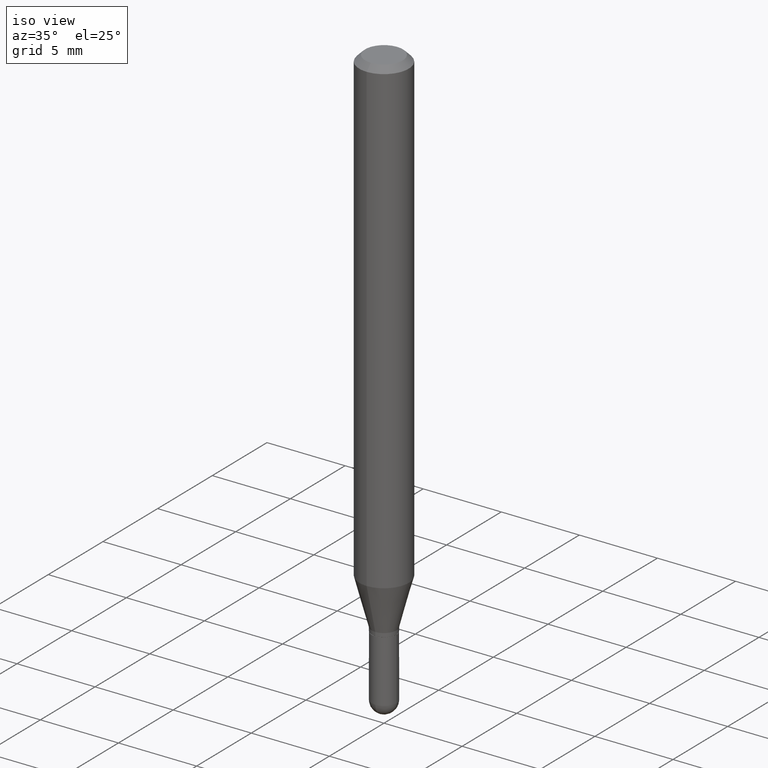
[diagram: clean part render]
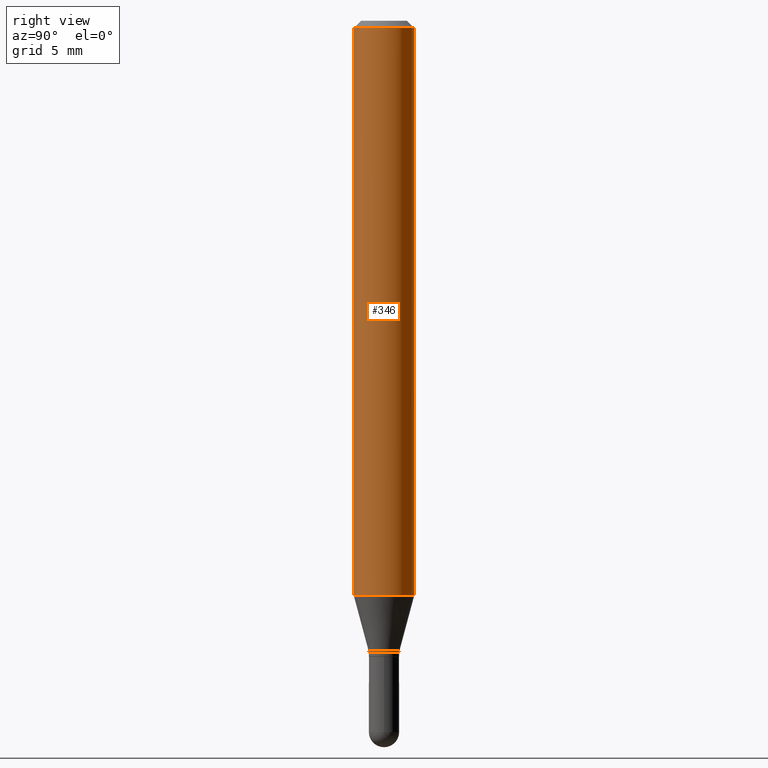
[diagram: tour spotlight — one face highlighted and labeled with its STEP entity id]
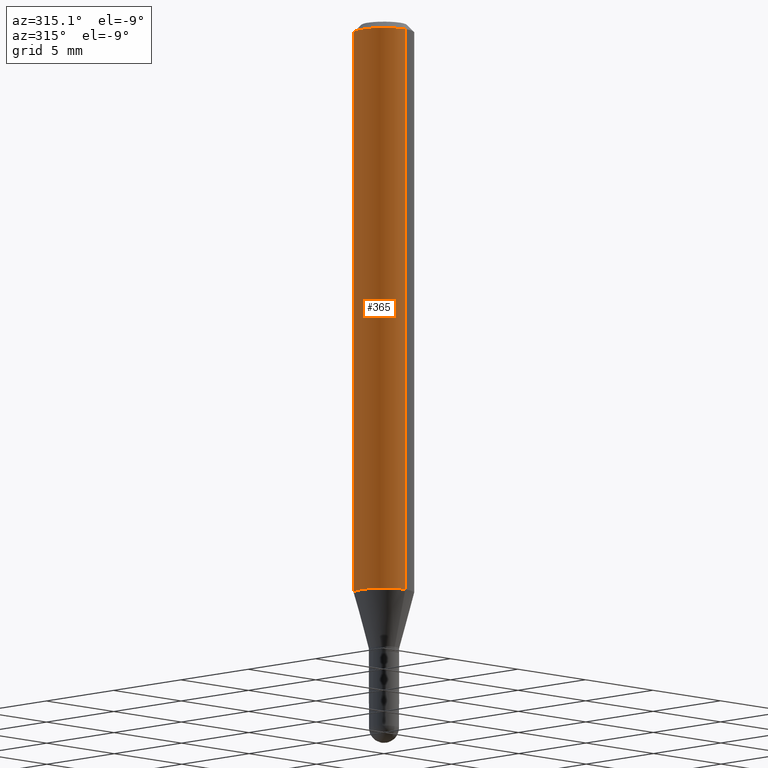
[diagram: tour spotlight — one face highlighted and labeled with its STEP entity id]
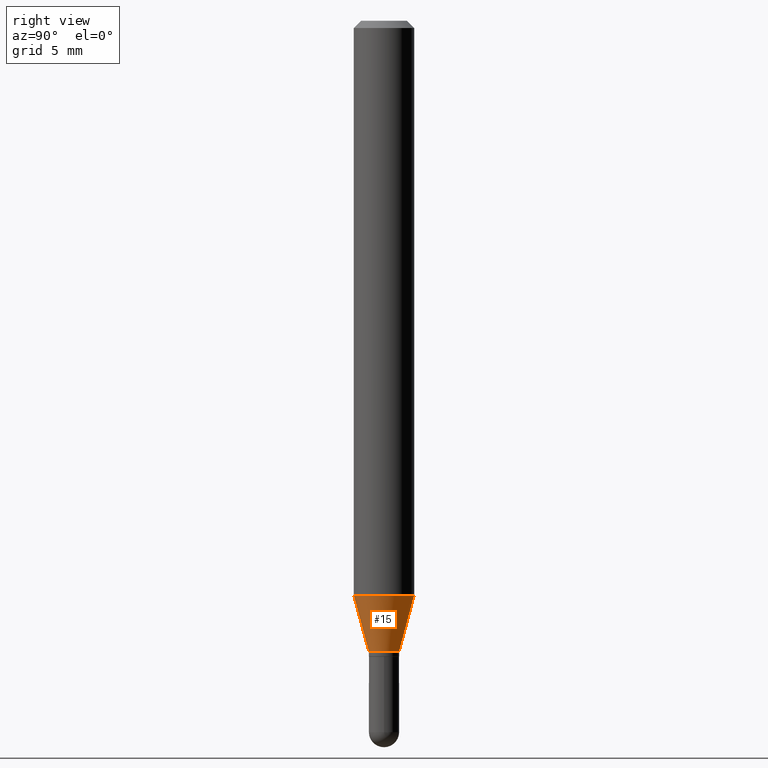
[diagram: tour spotlight — one face highlighted and labeled with its STEP entity id]
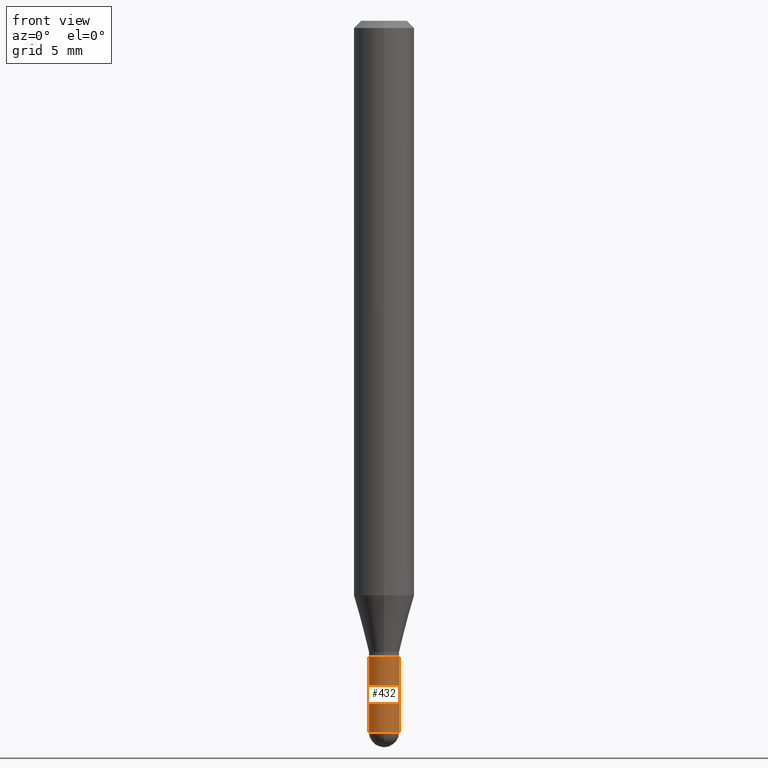
[diagram: tour spotlight — one face highlighted and labeled with its STEP entity id]
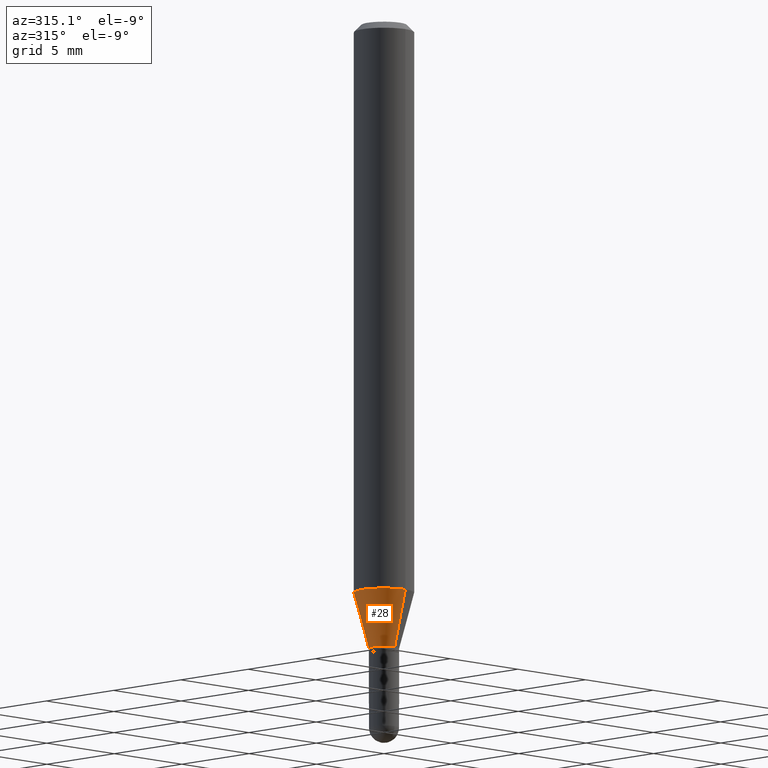
[diagram: tour spotlight — one face highlighted and labeled with its STEP entity id]
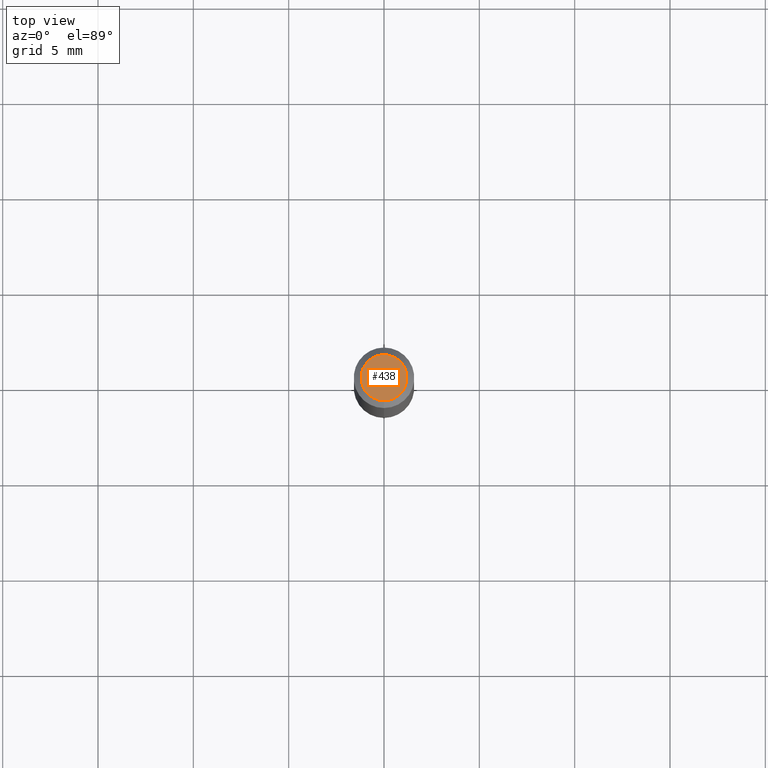
[diagram: tour spotlight — one face highlighted and labeled with its STEP entity id]
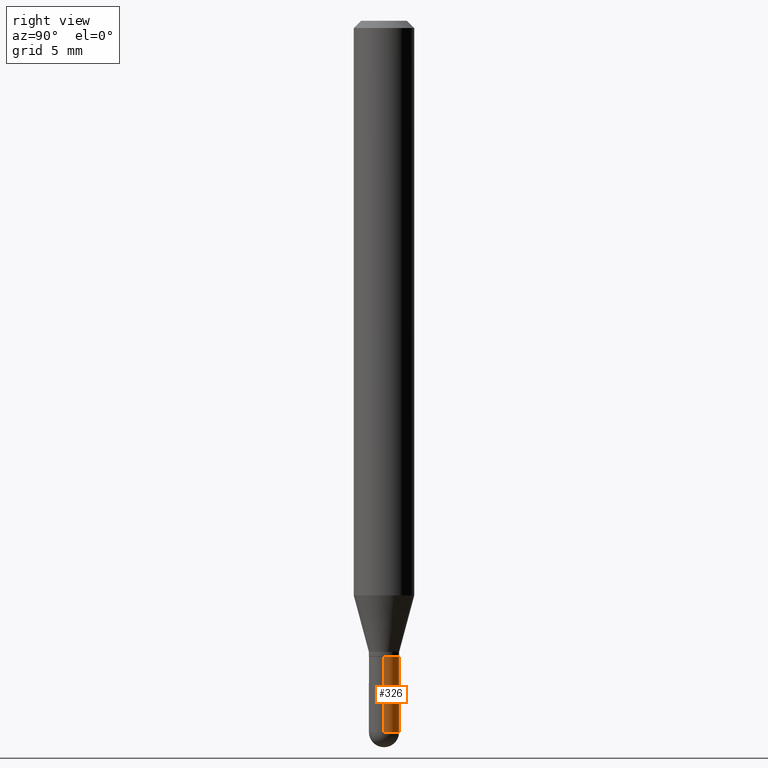
[diagram: tour spotlight — one face highlighted and labeled with its STEP entity id]
A machine part: a face-by-face anatomy tour. The part has 17 B-rep faces; the first image is the clean iso view, then the 7 largest visible faces are spotlighted one at a time (largest first), each with its STEP entity span.

Face 1 — right view, entity #346. In plain terms, the highlighted cylindrical surface (edge-blend (fillet) strip) has radius 1.5875 mm, axis along (-0, 0, 1).
Definition (entity closure, byte-faithful):
#10 = ORIENTED_EDGE ( 'NONE', *, *, #66, .F. ) ;
#13 = DIRECTION ( 'NONE',  ( -2.445707618412851174E-29, 3.491139346140710505E-15, 1.000000000000000000 ) ) ;
#37 = CARTESIAN_POINT ( 'NONE',  ( -4.364351673553913736E-16, -0.06250000000000006939, -0.01500000000000056496 ) ) ;
#54 = ORIENTED_EDGE ( 'NONE', *, *, #314, .T. ) ;
#65 = CARTESIAN_POINT ( 'NONE',  ( 4.440892098500919026E-16, 0.06249999999999997224, -0.01500000000000100038 ) ) ;
#66 = EDGE_CURVE ( 'NONE', #137, #136, #457, .T. ) ;
#75 = VECTOR ( 'NONE', #160, 39.37007874015748143 ) ;
#79 = CARTESIAN_POINT ( 'NONE',  ( 3.668561427619468125E-31, -5.236709019211339271E-17, -0.01500000000000078354 ) ) ;
#83 = CARTESIAN_POINT ( 'NONE',  ( -4.364351673553628267E-16, -0.06250000000000416334, -1.186373412263473703 ) ) ;
#92 = FACE_OUTER_BOUND ( 'NONE', #333, .T. ) ;
#114 = CARTESIAN_POINT ( 'NONE',  ( -4.364351673553916694E-16, -0.06250000000000001388, 2.181962091337944559E-16 ) ) ;
#128 = EDGE_CURVE ( 'NONE', #367, #137, #302, .T. ) ;
#136 = VERTEX_POINT ( 'NONE', #65 ) ;
#137 = VERTEX_POINT ( 'NONE', #37 ) ;
#160 = DIRECTION ( 'NONE',  ( -2.445707618412851454E-29, 3.491139346140710505E-15, 1.000000000000000000 ) ) ;
#167 = CARTESIAN_POINT ( 'NONE',  ( 0.000000000000000000, 0.000000000000000000, 0.000000000000000000 ) ) ;
#175 = VERTEX_POINT ( 'NONE', #193 ) ;
#193 = CARTESIAN_POINT ( 'NONE',  ( 4.440892098500913110E-16, 0.06249999999999582279, -1.186373412263473925 ) ) ;
#209 = CYLINDRICAL_SURFACE ( 'NONE', #309, 0.06250000000000001388 ) ;
#211 = AXIS2_PLACEMENT_3D ( 'NONE', #79, #235, #385 ) ;
#234 = DIRECTION ( 'NONE',  ( -2.445707618412851174E-29, 3.491139346140710505E-15, 1.000000000000000000 ) ) ;
#235 = DIRECTION ( 'NONE',  ( -2.445707618412851174E-29, 3.491139346140710505E-15, 1.000000000000000000 ) ) ;
#242 = EDGE_CURVE ( 'NONE', #367, #175, #402, .T. ) ;
#279 = ORIENTED_EDGE ( 'NONE', *, *, #128, .F. ) ;
#280 = LINE ( 'NONE', #396, #75 ) ;
#289 = ORIENTED_EDGE ( 'NONE', *, *, #242, .T. ) ;
#300 = VECTOR ( 'NONE', #510, 39.37007874015748143 ) ;
#302 = LINE ( 'NONE', #114, #300 ) ;
#309 = AXIS2_PLACEMENT_3D ( 'NONE', #167, #13, #394 ) ;
#314 = EDGE_CURVE ( 'NONE', #175, #136, #280, .T. ) ;
#333 = EDGE_LOOP ( 'NONE', ( #289, #54, #10, #279 ) ) ;
#346 = ADVANCED_FACE ( 'NONE', ( #92 ), #209, .T. ) ;
#367 = VERTEX_POINT ( 'NONE', #83 ) ;
#385 = DIRECTION ( 'NONE',  ( -6.982962677686265922E-15, -1.000000000000000000, 3.483106191921934765E-15 ) ) ;
#394 = DIRECTION ( 'NONE',  ( -6.982962677686265133E-15, -1.000000000000000000, 3.491139346140710505E-15 ) ) ;
#396 = CARTESIAN_POINT ( 'NONE',  ( 4.440892098500626162E-16, 0.06250000000000001388, -2.181962091337944559E-16 ) ) ;
#402 = CIRCLE ( 'NONE', #488, 0.06250000000000000000 ) ;
#457 = CIRCLE ( 'NONE', #211, 0.06250000000000001388 ) ;
#472 = DIRECTION ( 'NONE',  ( -6.982962677686265922E-15, -1.000000000000000000, 4.370956789862821150E-15 ) ) ;
#488 = AXIS2_PLACEMENT_3D ( 'NONE', #497, #234, #472 ) ;
#497 = CARTESIAN_POINT ( 'NONE',  ( 2.901522492655228288E-29, -4.141794898768227325E-15, -1.186373412263473703 ) ) ;
#510 = DIRECTION ( 'NONE',  ( -2.445707618412851454E-29, 3.491139346140710505E-15, 1.000000000000000000 ) ) ;

Face 2 — auxiliary view, entity #365. In plain terms, the highlighted cylindrical surface (edge-blend (fillet) strip) has radius 1.5875 mm, axis along (-0, 0, 1).
Definition (entity closure, byte-faithful):
#1 = EDGE_CURVE ( 'NONE', #136, #137, #388, .T. ) ;
#3 = CYLINDRICAL_SURFACE ( 'NONE', #153, 0.06250000000000001388 ) ;
#12 = CIRCLE ( 'NONE', #86, 0.06250000000000000000 ) ;
#37 = CARTESIAN_POINT ( 'NONE',  ( -4.364351673553913736E-16, -0.06250000000000006939, -0.01500000000000056496 ) ) ;
#49 = CARTESIAN_POINT ( 'NONE',  ( 0.000000000000000000, 0.000000000000000000, 0.000000000000000000 ) ) ;
#65 = CARTESIAN_POINT ( 'NONE',  ( 4.440892098500919026E-16, 0.06249999999999997224, -0.01500000000000100038 ) ) ;
#75 = VECTOR ( 'NONE', #160, 39.37007874015748143 ) ;
#83 = CARTESIAN_POINT ( 'NONE',  ( -4.364351673553628267E-16, -0.06250000000000416334, -1.186373412263473703 ) ) ;
#86 = AXIS2_PLACEMENT_3D ( 'NONE', #268, #386, #501 ) ;
#104 = CARTESIAN_POINT ( 'NONE',  ( 3.668561427619468125E-31, -5.236709019211339271E-17, -0.01500000000000078354 ) ) ;
#114 = CARTESIAN_POINT ( 'NONE',  ( -4.364351673553916694E-16, -0.06250000000000001388, 2.181962091337944559E-16 ) ) ;
#128 = EDGE_CURVE ( 'NONE', #367, #137, #302, .T. ) ;
#136 = VERTEX_POINT ( 'NONE', #65 ) ;
#137 = VERTEX_POINT ( 'NONE', #37 ) ;
#148 = EDGE_CURVE ( 'NONE', #175, #367, #12, .T. ) ;
#153 = AXIS2_PLACEMENT_3D ( 'NONE', #49, #213, #317 ) ;
#160 = DIRECTION ( 'NONE',  ( -2.445707618412851454E-29, 3.491139346140710505E-15, 1.000000000000000000 ) ) ;
#175 = VERTEX_POINT ( 'NONE', #193 ) ;
#180 = DIRECTION ( 'NONE',  ( -6.982962677686265922E-15, -1.000000000000000000, 3.483106191921934765E-15 ) ) ;
#193 = CARTESIAN_POINT ( 'NONE',  ( 4.440892098500913110E-16, 0.06249999999999582279, -1.186373412263473925 ) ) ;
#201 = AXIS2_PLACEMENT_3D ( 'NONE', #104, #378, #180 ) ;
#208 = ORIENTED_EDGE ( 'NONE', *, *, #128, .T. ) ;
#213 = DIRECTION ( 'NONE',  ( -2.445707618412851174E-29, 3.491139346140710505E-15, 1.000000000000000000 ) ) ;
#239 = EDGE_LOOP ( 'NONE', ( #284, #248, #208, #250 ) ) ;
#248 = ORIENTED_EDGE ( 'NONE', *, *, #148, .T. ) ;
#250 = ORIENTED_EDGE ( 'NONE', *, *, #1, .F. ) ;
#268 = CARTESIAN_POINT ( 'NONE',  ( 2.901522492655228288E-29, -4.141794898768227325E-15, -1.186373412263473703 ) ) ;
#280 = LINE ( 'NONE', #396, #75 ) ;
#284 = ORIENTED_EDGE ( 'NONE', *, *, #314, .F. ) ;
#300 = VECTOR ( 'NONE', #510, 39.37007874015748143 ) ;
#302 = LINE ( 'NONE', #114, #300 ) ;
#314 = EDGE_CURVE ( 'NONE', #175, #136, #280, .T. ) ;
#316 = FACE_OUTER_BOUND ( 'NONE', #239, .T. ) ;
#317 = DIRECTION ( 'NONE',  ( -6.982962677686265133E-15, -1.000000000000000000, 3.491139346140710505E-15 ) ) ;
#365 = ADVANCED_FACE ( 'NONE', ( #316 ), #3, .T. ) ;
#367 = VERTEX_POINT ( 'NONE', #83 ) ;
#378 = DIRECTION ( 'NONE',  ( -2.445707618412851174E-29, 3.491139346140710505E-15, 1.000000000000000000 ) ) ;
#386 = DIRECTION ( 'NONE',  ( -2.445707618412851174E-29, 3.491139346140710505E-15, 1.000000000000000000 ) ) ;
#388 = CIRCLE ( 'NONE', #201, 0.06250000000000001388 ) ;
#396 = CARTESIAN_POINT ( 'NONE',  ( 4.440892098500626162E-16, 0.06250000000000001388, -2.181962091337944559E-16 ) ) ;
#501 = DIRECTION ( 'NONE',  ( -6.982962677686265922E-15, -1.000000000000000000, 4.370956789862821150E-15 ) ) ;
#510 = DIRECTION ( 'NONE',  ( -2.445707618412851454E-29, 3.491139346140710505E-15, 1.000000000000000000 ) ) ;

Face 3 — right view, entity #15. In plain terms, the highlighted conical surface has half-angle 15 deg.
Definition (entity closure, byte-faithful):
#15 = ADVANCED_FACE ( 'NONE', ( #500 ), #433, .T. ) ;
#16 = ORIENTED_EDGE ( 'NONE', *, *, #77, .F. ) ;
#40 = DIRECTION ( 'NONE',  ( 1.839019923739601104E-15, 0.2588190451025250693, 0.9659258262890670910 ) ) ;
#77 = EDGE_CURVE ( 'NONE', #163, #367, #103, .T. ) ;
#82 = DIRECTION ( 'NONE',  ( -2.445707618412851174E-29, 3.491139346140710505E-15, 1.000000000000000000 ) ) ;
#83 = CARTESIAN_POINT ( 'NONE',  ( -4.364351673553628267E-16, -0.06250000000000416334, -1.186373412263473703 ) ) ;
#85 = CARTESIAN_POINT ( 'NONE',  ( 3.330669073875781221E-16, 0.03124999999999564237, -1.302999999999999936 ) ) ;
#89 = EDGE_CURVE ( 'NONE', #163, #372, #425, .T. ) ;
#103 = LINE ( 'NONE', #351, #164 ) ;
#112 = DIRECTION ( 'NONE',  ( -6.982962677686265922E-15, -1.000000000000000000, 0.000000000000000000 ) ) ;
#122 = AXIS2_PLACEMENT_3D ( 'NONE', #146, #82, #112 ) ;
#144 = DIRECTION ( 'NONE',  ( -6.982962677686265922E-15, -1.000000000000000000, 0.000000000000000000 ) ) ;
#146 = CARTESIAN_POINT ( 'NONE',  ( 3.186757026791945366E-29, -4.548954568021345804E-15, -1.302999999999999936 ) ) ;
#149 = CARTESIAN_POINT ( 'NONE',  ( 2.220446049250645389E-16, 0.03124999999999564584, -1.302999999999999936 ) ) ;
#163 = VERTEX_POINT ( 'NONE', #464 ) ;
#164 = VECTOR ( 'NONE', #343, 39.37007874015748143 ) ;
#175 = VERTEX_POINT ( 'NONE', #193 ) ;
#183 = VECTOR ( 'NONE', #40, 39.37007874015748143 ) ;
#193 = CARTESIAN_POINT ( 'NONE',  ( 4.440892098500913110E-16, 0.06249999999999582279, -1.186373412263473925 ) ) ;
#234 = DIRECTION ( 'NONE',  ( -2.445707618412851174E-29, 3.491139346140710505E-15, 1.000000000000000000 ) ) ;
#242 = EDGE_CURVE ( 'NONE', #367, #175, #402, .T. ) ;
#259 = EDGE_CURVE ( 'NONE', #372, #175, #377, .T. ) ;
#276 = AXIS2_PLACEMENT_3D ( 'NONE', #420, #502, #144 ) ;
#323 = ORIENTED_EDGE ( 'NONE', *, *, #89, .T. ) ;
#327 = EDGE_LOOP ( 'NONE', ( #323, #447, #486, #16 ) ) ;
#343 = DIRECTION ( 'NONE',  ( -1.807323732225330928E-15, -0.2588190451025182970, 0.9659258262890689783 ) ) ;
#351 = CARTESIAN_POINT ( 'NONE',  ( -2.182175836776652910E-16, -0.03125000000000474620, -1.302999999999999936 ) ) ;
#367 = VERTEX_POINT ( 'NONE', #83 ) ;
#372 = VERTEX_POINT ( 'NONE', #85 ) ;
#377 = LINE ( 'NONE', #149, #183 ) ;
#402 = CIRCLE ( 'NONE', #488, 0.06250000000000000000 ) ;
#420 = CARTESIAN_POINT ( 'NONE',  ( 3.186757026791945366E-29, -4.548954568021345804E-15, -1.302999999999999936 ) ) ;
#425 = CIRCLE ( 'NONE', #122, 0.03125000000000019429 ) ;
#433 = CONICAL_SURFACE ( 'NONE', #276, 0.03125000000000019429, 0.2617993877991502960 ) ;
#447 = ORIENTED_EDGE ( 'NONE', *, *, #259, .T. ) ;
#464 = CARTESIAN_POINT ( 'NONE',  ( -2.182175836776652910E-16, -0.03125000000000474620, -1.302999999999999936 ) ) ;
#472 = DIRECTION ( 'NONE',  ( -6.982962677686265922E-15, -1.000000000000000000, 4.370956789862821150E-15 ) ) ;
#486 = ORIENTED_EDGE ( 'NONE', *, *, #242, .F. ) ;
#488 = AXIS2_PLACEMENT_3D ( 'NONE', #497, #234, #472 ) ;
#497 = CARTESIAN_POINT ( 'NONE',  ( 2.901522492655228288E-29, -4.141794898768227325E-15, -1.186373412263473703 ) ) ;
#500 = FACE_OUTER_BOUND ( 'NONE', #327, .T. ) ;
#502 = DIRECTION ( 'NONE',  ( -2.445707618412851174E-29, 3.491139346140710505E-15, 1.000000000000000000 ) ) ;

Face 4 — front view, entity #432. In plain terms, the highlighted cylindrical surface (edge-blend (fillet) strip) has radius 0.7937 mm, axis along (-0, 0, 1).
Definition (entity closure, byte-faithful):
#9 = CARTESIAN_POINT ( 'NONE',  ( 3.591782309084418816E-29, -5.128113216425869865E-15, -1.468750000000000000 ) ) ;
#11 = EDGE_CURVE ( 'NONE', #165, #383, #328, .T. ) ;
#23 = AXIS2_PLACEMENT_3D ( 'NONE', #9, #481, #478 ) ;
#29 = CARTESIAN_POINT ( 'NONE',  ( 0.03125000000000000000, -4.802532581578746433E-15, -1.313000000000000167 ) ) ;
#32 = LINE ( 'NONE', #184, #329 ) ;
#52 = VERTEX_POINT ( 'NONE', #493 ) ;
#69 = CARTESIAN_POINT ( 'NONE',  ( -2.182175836776606071E-16, -0.03125000000000523193, -1.468750000000000000 ) ) ;
#78 = DIRECTION ( 'NONE',  ( -2.445468806185136877E-29, 3.491481338843145188E-15, 1.000000000000000000 ) ) ;
#109 = AXIS2_PLACEMENT_3D ( 'NONE', #173, #331, #491 ) ;
#140 = AXIS2_PLACEMENT_3D ( 'NONE', #262, #340, #299 ) ;
#165 = VERTEX_POINT ( 'NONE', #69 ) ;
#172 = VERTEX_POINT ( 'NONE', #470 ) ;
#173 = CARTESIAN_POINT ( 'NONE',  ( 3.210900542521084585E-29, -4.584314997901050598E-15, -1.313000000000000167 ) ) ;
#184 = CARTESIAN_POINT ( 'NONE',  ( 0.03125000000000000000, -2.182175836776958347E-16, 1.523805242436229935E-30 ) ) ;
#200 = CARTESIAN_POINT ( 'NONE',  ( 0.000000000000000000, 0.000000000000000000, 0.000000000000000000 ) ) ;
#202 = CIRCLE ( 'NONE', #109, 0.03125000000000000000 ) ;
#214 = ORIENTED_EDGE ( 'NONE', *, *, #441, .F. ) ;
#225 = ORIENTED_EDGE ( 'NONE', *, *, #11, .T. ) ;
#226 = EDGE_CURVE ( 'NONE', #383, #228, #32, .T. ) ;
#228 = VERTEX_POINT ( 'NONE', #29 ) ;
#232 = VECTOR ( 'NONE', #278, 39.37007874015748143 ) ;
#243 = CYLINDRICAL_SURFACE ( 'NONE', #322, 0.03125000000000000000 ) ;
#249 = CARTESIAN_POINT ( 'NONE',  ( -0.03125000000000000000, 2.220446049250313081E-16, -1.537167215704658057E-30 ) ) ;
#262 = CARTESIAN_POINT ( 'NONE',  ( 3.591782309084418816E-29, -5.128113216425869865E-15, -1.468750000000000000 ) ) ;
#278 = DIRECTION ( 'NONE',  ( -2.445468806185136877E-29, 3.491481338843145188E-15, 1.000000000000000000 ) ) ;
#299 = DIRECTION ( 'NONE',  ( 1.000000000000000000, -6.982962677686261189E-15, 0.000000000000000000 ) ) ;
#322 = AXIS2_PLACEMENT_3D ( 'NONE', #200, #401, #366 ) ;
#328 = CIRCLE ( 'NONE', #140, 0.03125000000000000694 ) ;
#329 = VECTOR ( 'NONE', #78, 39.37007874015748143 ) ;
#331 = DIRECTION ( 'NONE',  ( -2.445468806185136597E-29, 3.491481338843145583E-15, 1.000000000000000000 ) ) ;
#336 = EDGE_CURVE ( 'NONE', #172, #228, #202, .T. ) ;
#340 = DIRECTION ( 'NONE',  ( -2.445468806185136597E-29, 3.491481338843145583E-15, 1.000000000000000000 ) ) ;
#364 = ORIENTED_EDGE ( 'NONE', *, *, #336, .F. ) ;
#366 = DIRECTION ( 'NONE',  ( 1.000000000000000000, -6.982962677686266711E-15, 4.876176775795935793E-29 ) ) ;
#381 = EDGE_CURVE ( 'NONE', #52, #165, #507, .T. ) ;
#383 = VERTEX_POINT ( 'NONE', #392 ) ;
#392 = CARTESIAN_POINT ( 'NONE',  ( 0.03125000000000000694, -5.074431690841155672E-15, -1.468750000000000000 ) ) ;
#397 = LINE ( 'NONE', #249, #232 ) ;
#401 = DIRECTION ( 'NONE',  ( -2.445468806185136597E-29, 3.491481338843145583E-15, 1.000000000000000000 ) ) ;
#404 = EDGE_LOOP ( 'NONE', ( #214, #412, #225, #483, #364 ) ) ;
#412 = ORIENTED_EDGE ( 'NONE', *, *, #381, .T. ) ;
#432 = ADVANCED_FACE ( 'NONE', ( #436 ), #243, .T. ) ;
#436 = FACE_OUTER_BOUND ( 'NONE', #404, .T. ) ;
#441 = EDGE_CURVE ( 'NONE', #52, #172, #397, .T. ) ;
#470 = CARTESIAN_POINT ( 'NONE',  ( -0.03125000000000000000, -4.634169502238429318E-15, -1.313000000000000167 ) ) ;
#478 = DIRECTION ( 'NONE',  ( 1.000000000000000000, -6.982962677686261189E-15, 0.000000000000000000 ) ) ;
#481 = DIRECTION ( 'NONE',  ( -2.445468806185136597E-29, 3.491481338843145583E-15, 1.000000000000000000 ) ) ;
#483 = ORIENTED_EDGE ( 'NONE', *, *, #226, .T. ) ;
#491 = DIRECTION ( 'NONE',  ( 1.000000000000000000, -6.982962677686262766E-15, 0.000000000000000000 ) ) ;
#493 = CARTESIAN_POINT ( 'NONE',  ( -0.03125000000000000694, -4.634169502238429318E-15, -1.468750000000000000 ) ) ;
#507 = CIRCLE ( 'NONE', #23, 0.03125000000000000694 ) ;

Face 5 — auxiliary view, entity #28. In plain terms, the highlighted conical surface has half-angle 15 deg.
Definition (entity closure, byte-faithful):
#12 = CIRCLE ( 'NONE', #86, 0.06250000000000000000 ) ;
#28 = ADVANCED_FACE ( 'NONE', ( #505 ), #132, .T. ) ;
#36 = ORIENTED_EDGE ( 'NONE', *, *, #80, .T. ) ;
#40 = DIRECTION ( 'NONE',  ( 1.839019923739601104E-15, 0.2588190451025250693, 0.9659258262890670910 ) ) ;
#57 = ORIENTED_EDGE ( 'NONE', *, *, #148, .F. ) ;
#77 = EDGE_CURVE ( 'NONE', #163, #367, #103, .T. ) ;
#80 = EDGE_CURVE ( 'NONE', #372, #163, #133, .T. ) ;
#83 = CARTESIAN_POINT ( 'NONE',  ( -4.364351673553628267E-16, -0.06250000000000416334, -1.186373412263473703 ) ) ;
#85 = CARTESIAN_POINT ( 'NONE',  ( 3.330669073875781221E-16, 0.03124999999999564237, -1.302999999999999936 ) ) ;
#86 = AXIS2_PLACEMENT_3D ( 'NONE', #268, #386, #501 ) ;
#103 = LINE ( 'NONE', #351, #164 ) ;
#132 = CONICAL_SURFACE ( 'NONE', #423, 0.03125000000000019429, 0.2617993877991502960 ) ;
#133 = CIRCLE ( 'NONE', #362, 0.03125000000000019429 ) ;
#148 = EDGE_CURVE ( 'NONE', #175, #367, #12, .T. ) ;
#149 = CARTESIAN_POINT ( 'NONE',  ( 2.220446049250645389E-16, 0.03124999999999564584, -1.302999999999999936 ) ) ;
#150 = CARTESIAN_POINT ( 'NONE',  ( 3.186757026791945366E-29, -4.548954568021345804E-15, -1.302999999999999936 ) ) ;
#163 = VERTEX_POINT ( 'NONE', #464 ) ;
#164 = VECTOR ( 'NONE', #343, 39.37007874015748143 ) ;
#175 = VERTEX_POINT ( 'NONE', #193 ) ;
#179 = CARTESIAN_POINT ( 'NONE',  ( 3.186757026791945366E-29, -4.548954568021345804E-15, -1.302999999999999936 ) ) ;
#183 = VECTOR ( 'NONE', #40, 39.37007874015748143 ) ;
#193 = CARTESIAN_POINT ( 'NONE',  ( 4.440892098500913110E-16, 0.06249999999999582279, -1.186373412263473925 ) ) ;
#233 = ORIENTED_EDGE ( 'NONE', *, *, #77, .T. ) ;
#259 = EDGE_CURVE ( 'NONE', #372, #175, #377, .T. ) ;
#265 = DIRECTION ( 'NONE',  ( -2.445707618412851174E-29, 3.491139346140710505E-15, 1.000000000000000000 ) ) ;
#268 = CARTESIAN_POINT ( 'NONE',  ( 2.901522492655228288E-29, -4.141794898768227325E-15, -1.186373412263473703 ) ) ;
#270 = DIRECTION ( 'NONE',  ( -6.982962677686265922E-15, -1.000000000000000000, 0.000000000000000000 ) ) ;
#310 = DIRECTION ( 'NONE',  ( -6.982962677686265922E-15, -1.000000000000000000, 0.000000000000000000 ) ) ;
#343 = DIRECTION ( 'NONE',  ( -1.807323732225330928E-15, -0.2588190451025182970, 0.9659258262890689783 ) ) ;
#351 = CARTESIAN_POINT ( 'NONE',  ( -2.182175836776652910E-16, -0.03125000000000474620, -1.302999999999999936 ) ) ;
#362 = AXIS2_PLACEMENT_3D ( 'NONE', #179, #382, #310 ) ;
#367 = VERTEX_POINT ( 'NONE', #83 ) ;
#372 = VERTEX_POINT ( 'NONE', #85 ) ;
#377 = LINE ( 'NONE', #149, #183 ) ;
#382 = DIRECTION ( 'NONE',  ( -2.445707618412851174E-29, 3.491139346140710505E-15, 1.000000000000000000 ) ) ;
#386 = DIRECTION ( 'NONE',  ( -2.445707618412851174E-29, 3.491139346140710505E-15, 1.000000000000000000 ) ) ;
#423 = AXIS2_PLACEMENT_3D ( 'NONE', #150, #265, #270 ) ;
#437 = EDGE_LOOP ( 'NONE', ( #451, #36, #233, #57 ) ) ;
#451 = ORIENTED_EDGE ( 'NONE', *, *, #259, .F. ) ;
#464 = CARTESIAN_POINT ( 'NONE',  ( -2.182175836776652910E-16, -0.03125000000000474620, -1.302999999999999936 ) ) ;
#501 = DIRECTION ( 'NONE',  ( -6.982962677686265922E-15, -1.000000000000000000, 4.370956789862821150E-15 ) ) ;
#505 = FACE_OUTER_BOUND ( 'NONE', #437, .T. ) ;

Face 6 — top view, entity #438. In plain terms, the highlighted planar face has unit normal (0, -0, -1).
Definition (entity closure, byte-faithful):
#48 = CIRCLE ( 'NONE', #371, 0.04750000000000004219 ) ;
#63 = AXIS2_PLACEMENT_3D ( 'NONE', #161, #247, #245 ) ;
#116 = FACE_OUTER_BOUND ( 'NONE', #212, .T. ) ;
#118 = DIRECTION ( 'NONE',  ( -6.982962677686265133E-15, -1.000000000000000000, 3.491139346140709322E-15 ) ) ;
#120 = PLANE ( 'NONE',  #63 ) ;
#125 = CARTESIAN_POINT ( 'NONE',  ( 3.840629472727450339E-16, 0.04750000000000004219, -9.492000972570193079E-16 ) ) ;
#154 = CIRCLE ( 'NONE', #159, 0.04750000000000004219 ) ;
#159 = AXIS2_PLACEMENT_3D ( 'NONE', #207, #358, #320 ) ;
#161 = CARTESIAN_POINT ( 'NONE',  ( 3.316907271900979054E-16, 0.04750000000000004219, -5.575146080993514890E-16 ) ) ;
#178 = ORIENTED_EDGE ( 'NONE', *, *, #319, .T. ) ;
#207 = CARTESIAN_POINT ( 'NONE',  ( 1.915896369709344109E-44, -2.734857245021408663E-30, -7.833709783153354406E-16 ) ) ;
#212 = EDGE_LOOP ( 'NONE', ( #347, #178 ) ) ;
#245 = DIRECTION ( 'NONE',  ( 6.982962677686265922E-15, 1.000000000000000000, -3.491139346140710505E-15 ) ) ;
#247 = DIRECTION ( 'NONE',  ( 2.445707618412850893E-29, -3.491139346140710505E-15, -1.000000000000000000 ) ) ;
#319 = EDGE_CURVE ( 'NONE', #369, #495, #48, .T. ) ;
#320 = DIRECTION ( 'NONE',  ( -6.982962677686265133E-15, -1.000000000000000000, 3.491139346140709322E-15 ) ) ;
#347 = ORIENTED_EDGE ( 'NONE', *, *, #489, .T. ) ;
#354 = CARTESIAN_POINT ( 'NONE',  ( -3.773273898774342241E-16, -0.04750000000000004219, -6.175418593736515733E-16 ) ) ;
#358 = DIRECTION ( 'NONE',  ( -2.445707618412851174E-29, 3.491139346140710505E-15, 1.000000000000000000 ) ) ;
#369 = VERTEX_POINT ( 'NONE', #354 ) ;
#371 = AXIS2_PLACEMENT_3D ( 'NONE', #475, #473, #118 ) ;
#438 = ADVANCED_FACE ( 'NONE', ( #116 ), #120, .F. ) ;
#473 = DIRECTION ( 'NONE',  ( -2.445707618412851174E-29, 3.491139346140710505E-15, 1.000000000000000000 ) ) ;
#475 = CARTESIAN_POINT ( 'NONE',  ( 1.915896369709344109E-44, -2.734857245021408663E-30, -7.833709783153354406E-16 ) ) ;
#489 = EDGE_CURVE ( 'NONE', #495, #369, #154, .T. ) ;
#495 = VERTEX_POINT ( 'NONE', #125 ) ;

Face 7 — right view, entity #326. In plain terms, the highlighted cylindrical surface (edge-blend (fillet) strip) has radius 0.7937 mm, axis along (-0, 0, 1).
Definition (entity closure, byte-faithful):
#5 = CYLINDRICAL_SURFACE ( 'NONE', #267, 0.03125000000000000000 ) ;
#29 = CARTESIAN_POINT ( 'NONE',  ( 0.03125000000000000000, -4.802532581578746433E-15, -1.313000000000000167 ) ) ;
#32 = LINE ( 'NONE', #184, #329 ) ;
#42 = CARTESIAN_POINT ( 'NONE',  ( 3.591782309084418816E-29, -5.128113216425869865E-15, -1.468750000000000000 ) ) ;
#46 = CARTESIAN_POINT ( 'NONE',  ( 3.210900542521084585E-29, -4.584314997901050598E-15, -1.313000000000000167 ) ) ;
#52 = VERTEX_POINT ( 'NONE', #493 ) ;
#59 = ORIENTED_EDGE ( 'NONE', *, *, #441, .T. ) ;
#60 = CARTESIAN_POINT ( 'NONE',  ( 2.220446049250678915E-16, 0.03124999999999497277, -1.468750000000000000 ) ) ;
#71 = EDGE_LOOP ( 'NONE', ( #344, #59, #260, #91, #398 ) ) ;
#78 = DIRECTION ( 'NONE',  ( -2.445468806185136877E-29, 3.491481338843145188E-15, 1.000000000000000000 ) ) ;
#91 = ORIENTED_EDGE ( 'NONE', *, *, #226, .F. ) ;
#119 = DIRECTION ( 'NONE',  ( 1.000000000000000000, -6.982962677686262766E-15, 0.000000000000000000 ) ) ;
#124 = DIRECTION ( 'NONE',  ( 1.000000000000000000, -6.982962677686266711E-15, 4.876176775795935793E-29 ) ) ;
#141 = AXIS2_PLACEMENT_3D ( 'NONE', #42, #313, #231 ) ;
#156 = DIRECTION ( 'NONE',  ( -2.445468806185136597E-29, 3.491481338843145583E-15, 1.000000000000000000 ) ) ;
#166 = EDGE_CURVE ( 'NONE', #330, #52, #498, .T. ) ;
#172 = VERTEX_POINT ( 'NONE', #470 ) ;
#182 = EDGE_CURVE ( 'NONE', #383, #330, #277, .T. ) ;
#184 = CARTESIAN_POINT ( 'NONE',  ( 0.03125000000000000000, -2.182175836776958347E-16, 1.523805242436229935E-30 ) ) ;
#221 = AXIS2_PLACEMENT_3D ( 'NONE', #46, #244, #119 ) ;
#226 = EDGE_CURVE ( 'NONE', #383, #228, #32, .T. ) ;
#228 = VERTEX_POINT ( 'NONE', #29 ) ;
#231 = DIRECTION ( 'NONE',  ( 1.000000000000000000, -6.982962677686261189E-15, 0.000000000000000000 ) ) ;
#232 = VECTOR ( 'NONE', #278, 39.37007874015748143 ) ;
#240 = AXIS2_PLACEMENT_3D ( 'NONE', #466, #156, #430 ) ;
#244 = DIRECTION ( 'NONE',  ( -2.445468806185136597E-29, 3.491481338843145583E-15, 1.000000000000000000 ) ) ;
#249 = CARTESIAN_POINT ( 'NONE',  ( -0.03125000000000000000, 2.220446049250313081E-16, -1.537167215704658057E-30 ) ) ;
#254 = DIRECTION ( 'NONE',  ( -2.445468806185136597E-29, 3.491481338843145583E-15, 1.000000000000000000 ) ) ;
#260 = ORIENTED_EDGE ( 'NONE', *, *, #421, .F. ) ;
#267 = AXIS2_PLACEMENT_3D ( 'NONE', #405, #254, #124 ) ;
#277 = CIRCLE ( 'NONE', #141, 0.03125000000000000694 ) ;
#278 = DIRECTION ( 'NONE',  ( -2.445468806185136877E-29, 3.491481338843145188E-15, 1.000000000000000000 ) ) ;
#313 = DIRECTION ( 'NONE',  ( -2.445468806185136597E-29, 3.491481338843145583E-15, 1.000000000000000000 ) ) ;
#326 = ADVANCED_FACE ( 'NONE', ( #439 ), #5, .T. ) ;
#329 = VECTOR ( 'NONE', #78, 39.37007874015748143 ) ;
#330 = VERTEX_POINT ( 'NONE', #60 ) ;
#344 = ORIENTED_EDGE ( 'NONE', *, *, #166, .T. ) ;
#383 = VERTEX_POINT ( 'NONE', #392 ) ;
#392 = CARTESIAN_POINT ( 'NONE',  ( 0.03125000000000000694, -5.074431690841155672E-15, -1.468750000000000000 ) ) ;
#397 = LINE ( 'NONE', #249, #232 ) ;
#398 = ORIENTED_EDGE ( 'NONE', *, *, #182, .T. ) ;
#405 = CARTESIAN_POINT ( 'NONE',  ( 0.000000000000000000, 0.000000000000000000, 0.000000000000000000 ) ) ;
#421 = EDGE_CURVE ( 'NONE', #228, #172, #442, .T. ) ;
#430 = DIRECTION ( 'NONE',  ( 1.000000000000000000, -6.982962677686261189E-15, 0.000000000000000000 ) ) ;
#439 = FACE_OUTER_BOUND ( 'NONE', #71, .T. ) ;
#441 = EDGE_CURVE ( 'NONE', #52, #172, #397, .T. ) ;
#442 = CIRCLE ( 'NONE', #221, 0.03125000000000000000 ) ;
#466 = CARTESIAN_POINT ( 'NONE',  ( 3.591782309084418816E-29, -5.128113216425869865E-15, -1.468750000000000000 ) ) ;
#470 = CARTESIAN_POINT ( 'NONE',  ( -0.03125000000000000000, -4.634169502238429318E-15, -1.313000000000000167 ) ) ;
#493 = CARTESIAN_POINT ( 'NONE',  ( -0.03125000000000000694, -4.634169502238429318E-15, -1.468750000000000000 ) ) ;
#498 = CIRCLE ( 'NONE', #240, 0.03125000000000000694 ) ;